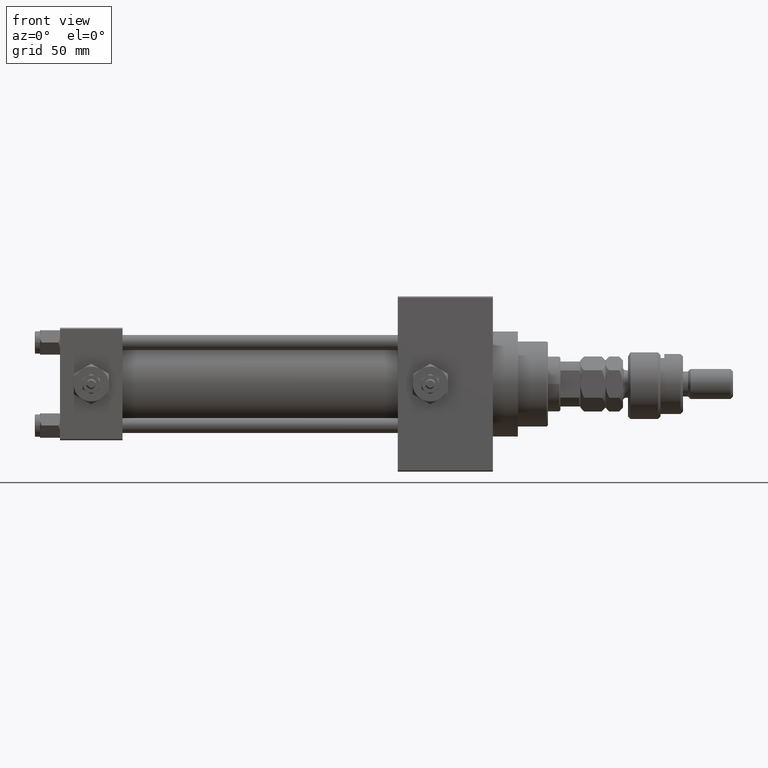
[diagram: clean part render]
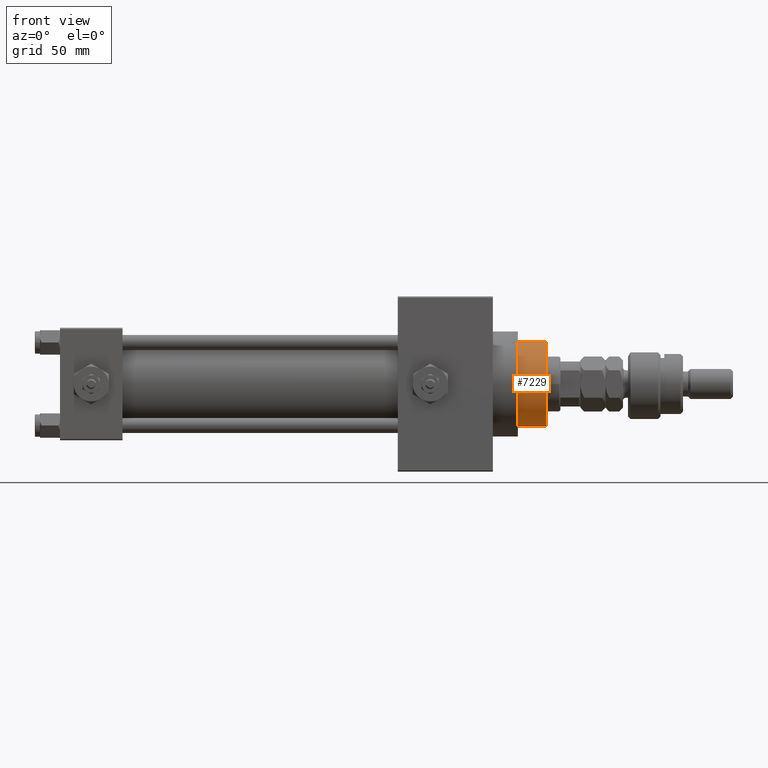
[diagram: same view with one face highlighted and labeled with its STEP entity id]
A machine part, front view. The second image highlights one B-rep face of the part: STEP entity #7229.
In plain terms, the highlighted cylindrical surface (partial cylindrical patch) has radius 17 mm, axis along (-1, 0, 0).
Its self-contained STEP definition (entity closure, byte-faithful):
#6999 = CARTESIAN_POINT ( 'NONE',  ( 17.00000000000000000, 2.081899558550500280E-15, 54.76000000000001222 ) ) ;
#7138 = CARTESIAN_POINT ( 'NONE',  ( 17.00000000000000000, 2.081899558550500280E-15, 43.25999999999999801 ) ) ;
#7229 = ADVANCED_FACE ( 'NONE', ( #33920 ), #21329, .T. ) ;
#12699 = ORIENTED_EDGE ( 'NONE', *, *, #43540, .F. ) ;
#13557 = VECTOR ( 'NONE', #32514, 1000.000000000000000 ) ;
#14529 = ORIENTED_EDGE ( 'NONE', *, *, #32680, .T. ) ;
#16181 = VECTOR ( 'NONE', #48602, 1000.000000000000000 ) ;
#18367 = DIRECTION ( 'NONE',  ( 0.000000000000000000, 0.000000000000000000, 1.000000000000000000 ) ) ;
#19571 = EDGE_CURVE ( 'NONE', #32757, #39564, #20952, .T. ) ;
#20903 = CARTESIAN_POINT ( 'NONE',  ( -17.00000000000000000, 0.000000000000000000, 54.76000000000001222 ) ) ;
#20952 = CIRCLE ( 'NONE', #45288, 17.00000000000000000 ) ;
#21016 = CARTESIAN_POINT ( 'NONE',  ( 17.00000000000000000, 2.081899558550500280E-15, 55.26000000000000512 ) ) ;
#21279 = LINE ( 'NONE', #21016, #16181 ) ;
#21329 = CYLINDRICAL_SURFACE ( 'NONE', #35188, 17.00000000000000000 ) ;
#21840 = VERTEX_POINT ( 'NONE', #6999 ) ;
#22156 = LINE ( 'NONE', #37208, #13557 ) ;
#22283 = CARTESIAN_POINT ( 'NONE',  ( -17.00000000000000000, 0.000000000000000000, 43.25999999999999801 ) ) ;
#27561 = ORIENTED_EDGE ( 'NONE', *, *, #29762, .T. ) ;
#29762 = EDGE_CURVE ( 'NONE', #21840, #32757, #21279, .T. ) ;
#30248 = DIRECTION ( 'NONE',  ( -0.000000000000000000, -0.000000000000000000, -1.000000000000000000 ) ) ;
#32514 = DIRECTION ( 'NONE',  ( -0.000000000000000000, -0.000000000000000000, -1.000000000000000000 ) ) ;
#32680 = EDGE_CURVE ( 'NONE', #47911, #21840, #37261, .T. ) ;
#32757 = VERTEX_POINT ( 'NONE', #7138 ) ;
#33605 = EDGE_LOOP ( 'NONE', ( #14529, #27561, #37761, #12699 ) ) ;
#33659 = CARTESIAN_POINT ( 'NONE',  ( 0.000000000000000000, 0.000000000000000000, 55.26000000000000512 ) ) ;
#33920 = FACE_OUTER_BOUND ( 'NONE', #33605, .T. ) ;
#35167 = DIRECTION ( 'NONE',  ( 1.000000000000000000, 0.000000000000000000, 0.000000000000000000 ) ) ;
#35188 = AXIS2_PLACEMENT_3D ( 'NONE', #33659, #30248, #49675 ) ;
#37208 = CARTESIAN_POINT ( 'NONE',  ( -17.00000000000000000, 0.000000000000000000, 55.26000000000000512 ) ) ;
#37261 = CIRCLE ( 'NONE', #51509, 17.00000000000000000 ) ;
#37761 = ORIENTED_EDGE ( 'NONE', *, *, #19571, .T. ) ;
#38069 = CARTESIAN_POINT ( 'NONE',  ( 0.000000000000000000, 0.000000000000000000, 43.25999999999999801 ) ) ;
#39564 = VERTEX_POINT ( 'NONE', #22283 ) ;
#42068 = CARTESIAN_POINT ( 'NONE',  ( 0.000000000000000000, 0.000000000000000000, 54.76000000000001222 ) ) ;
#43540 = EDGE_CURVE ( 'NONE', #47911, #39564, #22156, .T. ) ;
#45288 = AXIS2_PLACEMENT_3D ( 'NONE', #38069, #18367, #35167 ) ;
#45752 = DIRECTION ( 'NONE',  ( 0.000000000000000000, 0.000000000000000000, -1.000000000000000000 ) ) ;
#47911 = VERTEX_POINT ( 'NONE', #20903 ) ;
#48602 = DIRECTION ( 'NONE',  ( -0.000000000000000000, -0.000000000000000000, -1.000000000000000000 ) ) ;
#49675 = DIRECTION ( 'NONE',  ( -1.000000000000000000, 0.000000000000000000, 0.000000000000000000 ) ) ;
#49941 = DIRECTION ( 'NONE',  ( 1.000000000000000000, 0.000000000000000000, 0.000000000000000000 ) ) ;
#51509 = AXIS2_PLACEMENT_3D ( 'NONE', #42068, #45752, #49941 ) ;